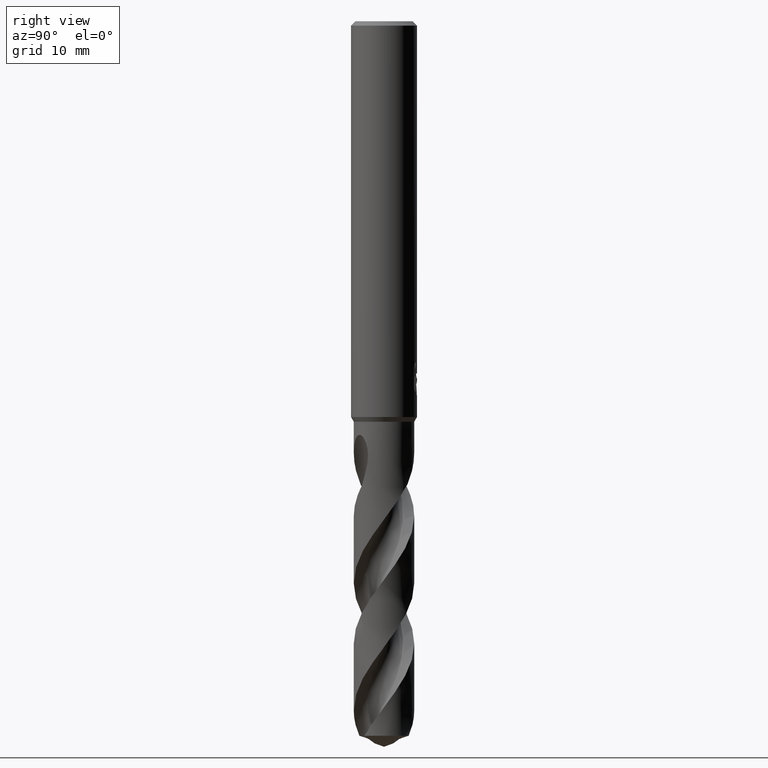
[diagram: clean part render]
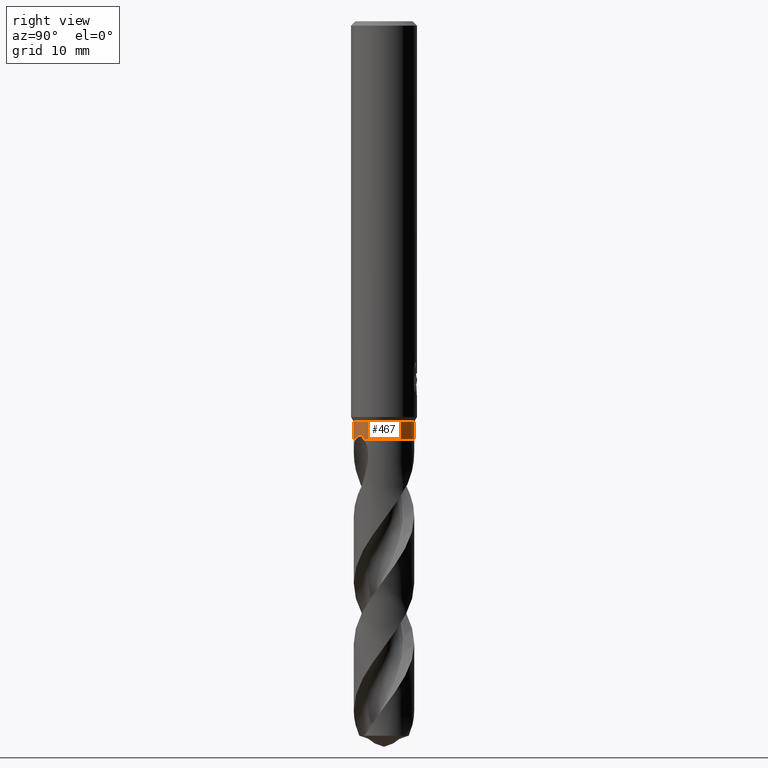
[diagram: same view with one face highlighted and labeled with its STEP entity id]
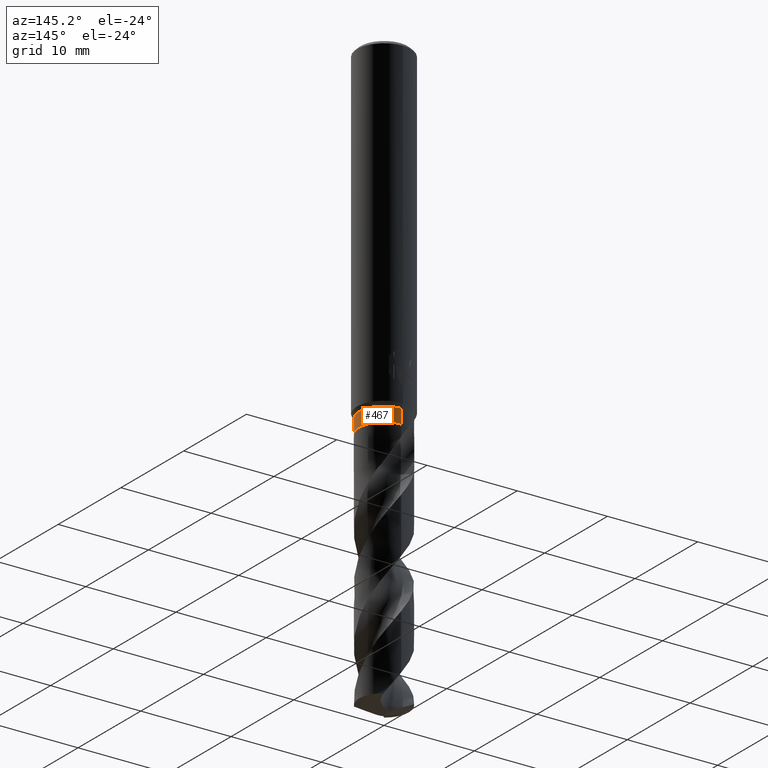
[diagram: same view with one face highlighted and labeled with its STEP entity id]
A machine part, right view. The second image highlights one B-rep face of the part: STEP entity #467.
A second angle (auxiliary view) of the same face is appended — the face is thin or edge-on in the first view.
In plain terms, the highlighted cylindrical surface (edge-blend (fillet) strip) has radius 2.75 mm, axis along (-0, -0, 1).
Its self-contained STEP definition (entity closure, byte-faithful):
#323=EDGE_CURVE('',#473,#721,#816,.T.);
#331=VERTEX_POINT('',#824);
#337=VERTEX_POINT('',#830);
#353=VERTEX_POINT('',#848);
#399=EDGE_CURVE('',#353,#643,#899,.T.);
#467=ADVANCED_FACE('',(#973),#974,.T.);
#473=VERTEX_POINT('',#980);
#477=EDGE_CURVE('',#721,#337,#984,.T.);
#485=EDGE_CURVE('',#473,#643,#993,.T.);
#629=EDGE_CURVE('',#331,#337,#1153,.T.);
#643=VERTEX_POINT('',#1168);
#661=EDGE_CURVE('',#331,#353,#1188,.T.);
#721=VERTEX_POINT('',#1255);
#816=LINE('',#1592,#1593);
#824=CARTESIAN_POINT('',(0.939100198970307,-2.58468389098047,-38.0));
#830=CARTESIAN_POINT('',(2.08265125193971,-1.7958462525489,-38.0));
#848=CARTESIAN_POINT('',(3.36766747301154E-016,-2.75,-38.0));
#899=LINE('',#1845,#1846);
#973=FACE_OUTER_BOUND('',#2157,.T.);
#974=CYLINDRICAL_SURFACE('',#2158,2.75);
#980=CARTESIAN_POINT('',(0.0,2.75,-36.4330127018922));
#984=CIRCLE('',#2170,2.75);
#993=CIRCLE('',#2272,2.75);
#1153=B_SPLINE_CURVE_WITH_KNOTS('',3,(#4624,#4625,#4626,#4627,#4628,#4629,#4630,#4631,#4632,#4633,#4634,#4635),.UNSPECIFIED.,.F.,.F.,(4,2,2,2,2,4),(0.0,0.519086287789177,0.83449032406034,1.09381424810462,1.35513715723653,1.63525526809738),.UNSPECIFIED.);
#1168=CARTESIAN_POINT('',(3.36766747301154E-016,-2.75,-36.4330127018922));
#1188=CIRCLE('',#4873,2.75);
#1255=CARTESIAN_POINT('',(-3.36766747301154E-016,2.75,-38.0));
#1592=CARTESIAN_POINT('',(-3.36766747301154E-016,2.75,-37.2165063509461));
#1593=VECTOR('',#5190,1.0);
#1845=CARTESIAN_POINT('',(3.36766747301154E-016,-2.75,-37.2165063509461));
#1846=VECTOR('',#5302,1.0);
#2157=EDGE_LOOP('',(#5377,#5378,#5379,#5380,#5381,#5382));
#2158=AXIS2_PLACEMENT_3D('',#5383,#5384,#5385);
#2170=AXIS2_PLACEMENT_3D('',#5389,#5390,#5391);
#2272=AXIS2_PLACEMENT_3D('',#5401,#5402,#5403);
#4624=CARTESIAN_POINT('',(0.939100198970308,-2.58468389098047,-38.0));
#4625=CARTESIAN_POINT('',(1.05882983727316,-2.54118219719686,-37.8829044448518));
#4626=CARTESIAN_POINT('',(1.19281695741009,-2.48290335622188,-37.7732386146798));
#4627=CARTESIAN_POINT('',(1.41576085579771,-2.35953297800104,-37.6625479160566));
#4628=CARTESIAN_POINT('',(1.50201071504096,-2.30595956000296,-37.6356876727466));
#4629=CARTESIAN_POINT('',(1.65795855502728,-2.19570030237781,-37.6294557686971));
#4630=CARTESIAN_POINT('',(1.72414848008703,-2.14392055160865,-37.6426782062351));
#4631=CARTESIAN_POINT('',(1.84802584649463,-2.03813288799402,-37.7010895951132));
#4632=CARTESIAN_POINT('',(1.90267076780019,-1.9867016902192,-37.7451049738703));
#4633=CARTESIAN_POINT('',(2.00214805697159,-1.88659328259915,-37.856963545621));
#4634=CARTESIAN_POINT('',(2.04566702594454,-1.83873703145692,-37.925889709196));
#4635=CARTESIAN_POINT('',(2.08265125193971,-1.79584625254891,-38.0));
#4873=AXIS2_PLACEMENT_3D('',#5625,#5626,#5627);
#5190=DIRECTION('',(0.0,0.0,-1.0));
#5302=DIRECTION('',(-0.0,-0.0,1.0));
#5377=ORIENTED_EDGE('',*,*,#323,.F.);
#5378=ORIENTED_EDGE('',*,*,#485,.T.);
#5379=ORIENTED_EDGE('',*,*,#399,.F.);
#5380=ORIENTED_EDGE('',*,*,#661,.F.);
#5381=ORIENTED_EDGE('',*,*,#629,.T.);
#5382=ORIENTED_EDGE('',*,*,#477,.F.);
#5383=CARTESIAN_POINT('',(0.0,0.0,-37.2165063509461));
#5384=DIRECTION('',(-0.0,-0.0,1.0));
#5385=DIRECTION('',(0.0,1.0,0.0));
#5389=CARTESIAN_POINT('',(0.0,0.0,-38.0));
#5390=DIRECTION('',(0.0,0.0,-1.0));
#5391=DIRECTION('',(0.0,1.0,0.0));
#5401=CARTESIAN_POINT('',(0.0,0.0,-36.4330127018922));
#5402=DIRECTION('',(0.0,0.0,-1.0));
#5403=DIRECTION('',(0.0,1.0,0.0));
#5625=CARTESIAN_POINT('',(0.0,0.0,-38.0));
#5626=DIRECTION('',(0.0,0.0,-1.0));
#5627=DIRECTION('',(0.0,1.0,0.0));